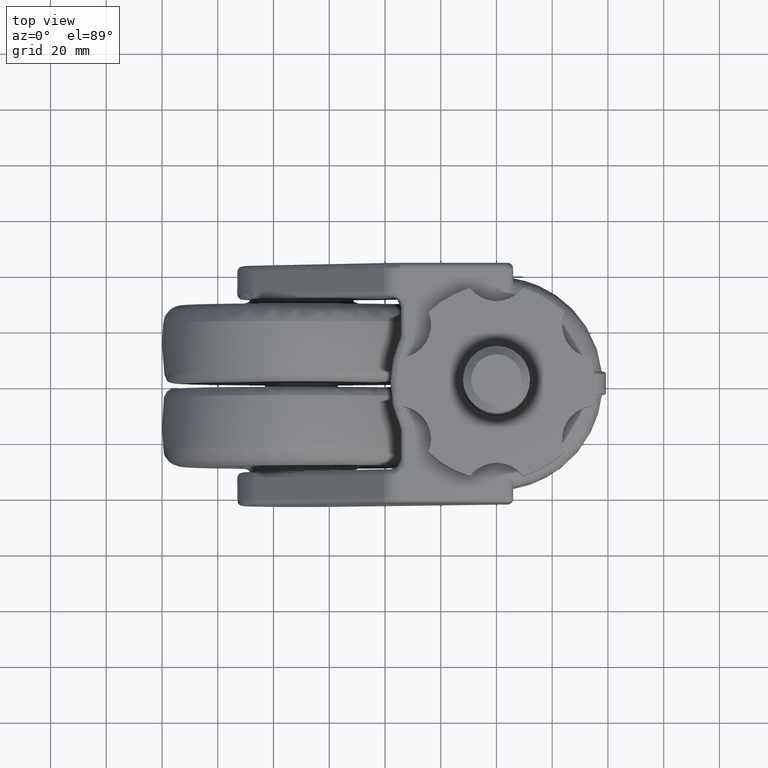
[diagram: clean part render]
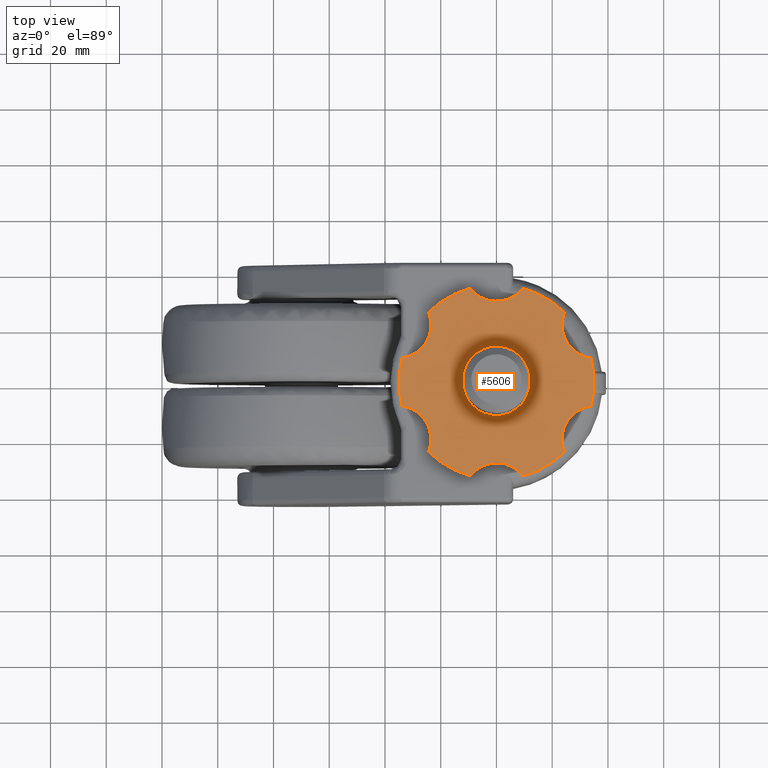
[diagram: same view with one face highlighted and labeled with its STEP entity id]
A machine part, top view. The second image highlights one B-rep face of the part: STEP entity #5606.
In plain terms, the highlighted face is a freeform B-spline surface patch.
Its self-contained STEP definition (entity closure, byte-faithful):
#4047=CARTESIAN_POINT('',(-12.0,0.0,3.0));
#4048=VERTEX_POINT('',#4047);
#4049=CARTESIAN_POINT('',(-0.941509149035661,11.963008004773810,2.999999999999997));
#4050=VERTEX_POINT('',#4049);
#4051=CARTESIAN_POINT('',(-12.0,0.0,3.0));
#4052=CARTESIAN_POINT('',(-12.0,11.092685899337635,3.000000000000000));
#4053=CARTESIAN_POINT('',(-0.941509149035661,11.963008004773807,2.999999999999997));
#4061=(BOUNDED_CURVE()B_SPLINE_CURVE(2,(#4051,#4052,#4053),.UNSPECIFIED.,.F.,.U.)B_SPLINE_CURVE_WITH_KNOTS((3,3),(0.500000000000000,0.736331300624126),.UNSPECIFIED.)CURVE()GEOMETRIC_REPRESENTATION_ITEM()RATIONAL_B_SPLINE_CURVE((1.0,0.723120658615320,0.969723356153783))REPRESENTATION_ITEM(''));
#4062=EDGE_CURVE('',#4048,#4050,#4061,.T.);
#4064=CARTESIAN_POINT('',(0.941509149035660,-11.963008004773810,2.999999999999997));
#4065=VERTEX_POINT('',#4064);
#4066=CARTESIAN_POINT('',(0.941509149035660,-11.963008004773803,2.999999999999997));
#4067=CARTESIAN_POINT('',(0.471481284394952,-12.000000000000007,3.000000000000000));
#4068=CARTESIAN_POINT('',(0.0,-12.0,3.0));
#4069=CARTESIAN_POINT('',(-12.0,-12.0,3.0));
#4070=CARTESIAN_POINT('',(-12.0,0.0,3.0));
#4078=(BOUNDED_CURVE()B_SPLINE_CURVE(2,(#4066,#4067,#4068,#4069,#4070),.UNSPECIFIED.,.F.,.U.)B_SPLINE_CURVE_WITH_KNOTS((3,2,3),(0.236331300624126,0.250000000000000,0.500000000000000),.UNSPECIFIED.)CURVE()GEOMETRIC_REPRESENTATION_ITEM()RATIONAL_B_SPLINE_CURVE((0.969723356153782,0.983986122571227,1.0,0.707106781186548,1.0))REPRESENTATION_ITEM(''));
#4079=EDGE_CURVE('',#4065,#4048,#4078,.T.);
#4115=CARTESIAN_POINT('',(12.0,0.0,3.0));
#4116=VERTEX_POINT('',#4115);
#4117=CARTESIAN_POINT('',(-0.941509149035661,11.963008004773803,2.999999999999997));
#4118=CARTESIAN_POINT('',(-0.471481284394953,11.999999999999995,3.000000000000000));
#4119=CARTESIAN_POINT('',(0.0,12.0,3.0));
#4120=CARTESIAN_POINT('',(12.0,12.0,3.0));
#4121=CARTESIAN_POINT('',(12.0,0.0,3.0));
#4129=(BOUNDED_CURVE()B_SPLINE_CURVE(2,(#4117,#4118,#4119,#4120,#4121),.UNSPECIFIED.,.F.,.U.)B_SPLINE_CURVE_WITH_KNOTS((3,2,3),(0.736331300624126,0.750000000000000,1.0),.UNSPECIFIED.)CURVE()GEOMETRIC_REPRESENTATION_ITEM()RATIONAL_B_SPLINE_CURVE((0.969723356153782,0.983986122571227,1.0,0.707106781186548,1.0))REPRESENTATION_ITEM(''));
#4130=EDGE_CURVE('',#4050,#4116,#4129,.T.);
#4137=CARTESIAN_POINT('',(12.0,0.0,3.0));
#4138=CARTESIAN_POINT('',(12.000000000000002,-11.092685899337598,3.000000000000001));
#4139=CARTESIAN_POINT('',(0.941509149035660,-11.963008004773810,2.999999999999998));
#4147=(BOUNDED_CURVE()B_SPLINE_CURVE(2,(#4137,#4138,#4139),.UNSPECIFIED.,.F.,.U.)B_SPLINE_CURVE_WITH_KNOTS((3,3),(0.0,0.236331300624126),.UNSPECIFIED.)CURVE()GEOMETRIC_REPRESENTATION_ITEM()RATIONAL_B_SPLINE_CURVE((1.0,0.723120658615320,0.969723356153782))REPRESENTATION_ITEM(''));
#4148=EDGE_CURVE('',#4116,#4065,#4147,.T.);
#4935=CARTESIAN_POINT('',(-33.925804934236801,8.604635934431780,3.0));
#4936=VERTEX_POINT('',#4935);
#4937=CARTESIAN_POINT('',(-33.925805495054753,-8.604635730023711,3.0));
#4938=VERTEX_POINT('',#4937);
#4939=CARTESIAN_POINT('',(-33.925804934236787,8.604635934431769,3.0));
#4940=CARTESIAN_POINT('',(-36.108207333125854,0.000000173324442,3.000000000000000));
#4941=CARTESIAN_POINT('',(-33.925805495054753,-8.604635730023711,3.0));
#4949=(BOUNDED_CURVE()B_SPLINE_CURVE(2,(#4939,#4940,#4941),.UNSPECIFIED.,.F.,.U.)CURVE()GEOMETRIC_REPRESENTATION_ITEM()QUASI_UNIFORM_CURVE()RATIONAL_B_SPLINE_CURVE((1.0,0.969308713586864,1.0))REPRESENTATION_ITEM(''));
#4950=EDGE_CURVE('',#4936,#4938,#4949,.T.);
#4996=CARTESIAN_POINT('',(-24.414735776652751,-25.078290949668649,3.0));
#4997=VERTEX_POINT('',#4996);
#4998=CARTESIAN_POINT('',(-24.414735776652751,-25.078290949668649,3.0));
#4999=CARTESIAN_POINT('',(-22.160541410148308,-19.616816971440102,3.000000000000000));
#5000=CARTESIAN_POINT('',(-25.114737232491709,-14.499999865064630,3.0));
#5001=CARTESIAN_POINT('',(-28.068933054835121,-9.383182758689154,3.000000000000000));
#5002=CARTESIAN_POINT('',(-33.925805495054753,-8.604635730023713,3.0));
#5010=(BOUNDED_CURVE()B_SPLINE_CURVE(2,(#4998,#4999,#5000,#5001,#5002),.UNSPECIFIED.,.F.,.U.)B_SPLINE_CURVE_WITH_KNOTS((3,2,3),(0.0,0.500000000000000,1.0),.UNSPECIFIED.)CURVE()GEOMETRIC_REPRESENTATION_ITEM()RATIONAL_B_SPLINE_CURVE((1.0,0.897149960549966,1.0,0.897149960549966,1.0))REPRESENTATION_ITEM(''));
#5011=EDGE_CURVE('',#4997,#4938,#5010,.T.);
#5053=CARTESIAN_POINT('',(-9.511069392596539,-33.682926882337902,3.0));
#5054=VERTEX_POINT('',#5053);
#5055=CARTESIAN_POINT('',(-24.414735776652751,-25.078290949668649,3.0));
#5056=CARTESIAN_POINT('',(-18.054103774965707,-31.270624789537539,3.0));
#5057=CARTESIAN_POINT('',(-9.511069392596539,-33.682926882337902,3.0));
#5065=(BOUNDED_CURVE()B_SPLINE_CURVE(2,(#5055,#5056,#5057),.UNSPECIFIED.,.F.,.U.)CURVE()GEOMETRIC_REPRESENTATION_ITEM()QUASI_UNIFORM_CURVE()RATIONAL_B_SPLINE_CURVE((1.0,0.969308713202774,1.0))REPRESENTATION_ITEM(''));
#5066=EDGE_CURVE('',#4997,#5054,#5065,.T.);
#5106=CARTESIAN_POINT('',(9.511069157583881,-33.682926884100453,3.0));
#5107=VERTEX_POINT('',#5106);
#5108=CARTESIAN_POINT('',(9.511069157583881,-33.682926884100453,3.0));
#5109=CARTESIAN_POINT('',(5.908391493574867,-28.999999965065786,3.000000000000000));
#5110=CARTESIAN_POINT('',(-0.000000070951713,-29.0,3.0));
#5111=CARTESIAN_POINT('',(-5.908391635478290,-29.000000034934217,3.000000000000000));
#5112=CARTESIAN_POINT('',(-9.511069392596534,-33.682926882337910,3.0));
#5120=(BOUNDED_CURVE()B_SPLINE_CURVE(2,(#5108,#5109,#5110,#5111,#5112),.UNSPECIFIED.,.F.,.U.)B_SPLINE_CURVE_WITH_KNOTS((3,2,3),(0.0,0.500000000000000,1.0),.UNSPECIFIED.)CURVE()GEOMETRIC_REPRESENTATION_ITEM()RATIONAL_B_SPLINE_CURVE((1.0,0.897149958988129,1.0,0.897149958988129,1.0))REPRESENTATION_ITEM(''));
#5121=EDGE_CURVE('',#5107,#5054,#5120,.T.);
#5163=CARTESIAN_POINT('',(24.414735102458049,-25.078291152314200,3.0));
#5164=VERTEX_POINT('',#5163);
#5165=CARTESIAN_POINT('',(9.511069157583878,-33.682926884100453,3.0));
#5166=CARTESIAN_POINT('',(18.054103368746318,-31.270624963974704,3.000000000000001));
#5167=CARTESIAN_POINT('',(24.414735102458049,-25.078291152314200,3.0));
#5175=(BOUNDED_CURVE()B_SPLINE_CURVE(2,(#5165,#5166,#5167),.UNSPECIFIED.,.F.,.U.)CURVE()GEOMETRIC_REPRESENTATION_ITEM()QUASI_UNIFORM_CURVE()RATIONAL_B_SPLINE_CURVE((1.0,0.969308714599837,1.0))REPRESENTATION_ITEM(''));
#5176=EDGE_CURVE('',#5107,#5164,#5175,.T.);
#5216=CARTESIAN_POINT('',(33.925804934236801,-8.604635934431721,3.0));
#5217=VERTEX_POINT('',#5216);
#5218=CARTESIAN_POINT('',(33.925804934236801,-8.604635934431721,3.0));
#5219=CARTESIAN_POINT('',(28.068932211495977,-9.383182535004474,3.000000000000000));
#5220=CARTESIAN_POINT('',(25.114736256691110,-14.499999823149860,3.0));
#5221=CARTESIAN_POINT('',(22.160540301886261,-19.616817111295237,3.000000000000000));
#5222=CARTESIAN_POINT('',(24.414735102458060,-25.078291152314200,3.0));
#5230=(BOUNDED_CURVE()B_SPLINE_CURVE(2,(#5218,#5219,#5220,#5221,#5222),.UNSPECIFIED.,.F.,.U.)B_SPLINE_CURVE_WITH_KNOTS((3,2,3),(0.0,0.500000000000000,1.0),.UNSPECIFIED.)CURVE()GEOMETRIC_REPRESENTATION_ITEM()RATIONAL_B_SPLINE_CURVE((1.0,0.897149953923727,1.0,0.897149953923727,1.0))REPRESENTATION_ITEM(''));
#5231=EDGE_CURVE('',#5217,#5164,#5230,.T.);
#5273=CARTESIAN_POINT('',(33.925804495054663,8.604635730023722,3.0));
#5274=VERTEX_POINT('',#5273);
#5275=CARTESIAN_POINT('',(33.925804934236801,-8.604635934431729,3.0));
#5276=CARTESIAN_POINT('',(36.108207365290191,-0.000000046508894,3.000000000000000));
#5277=CARTESIAN_POINT('',(33.925804495054663,8.604635730023722,3.0));
#5285=(BOUNDED_CURVE()B_SPLINE_CURVE(2,(#5275,#5276,#5277),.UNSPECIFIED.,.F.,.U.)CURVE()GEOMETRIC_REPRESENTATION_ITEM()QUASI_UNIFORM_CURVE()RATIONAL_B_SPLINE_CURVE((1.0,0.969308712723427,1.0))REPRESENTATION_ITEM(''));
#5286=EDGE_CURVE('',#5217,#5274,#5285,.T.);
#5326=CARTESIAN_POINT('',(24.414735776652751,25.078290949668649,3.0));
#5327=VERTEX_POINT('',#5326);
#5328=CARTESIAN_POINT('',(24.414735776652751,25.078290949668649,3.0));
#5329=CARTESIAN_POINT('',(22.160540336856496,19.616817286234628,3.000000000000000));
#5330=CARTESIAN_POINT('',(25.114736137110540,14.500000030269490,3.0));
#5331=CARTESIAN_POINT('',(28.068931937364578,9.383182774304354,3.000000000000000));
#5332=CARTESIAN_POINT('',(33.925804495054649,8.604635730023711,3.0));
#5340=(BOUNDED_CURVE()B_SPLINE_CURVE(2,(#5328,#5329,#5330,#5331,#5332),.UNSPECIFIED.,.F.,.U.)B_SPLINE_CURVE_WITH_KNOTS((3,2,3),(0.0,0.500000000000000,1.0),.UNSPECIFIED.)CURVE()GEOMETRIC_REPRESENTATION_ITEM()RATIONAL_B_SPLINE_CURVE((1.0,0.897149957038940,1.0,0.897149957038940,1.0))REPRESENTATION_ITEM(''));
#5341=EDGE_CURVE('',#5327,#5274,#5340,.T.);
#5383=CARTESIAN_POINT('',(9.511069392596530,33.682926882337902,3.0));
#5384=VERTEX_POINT('',#5383);
#5385=CARTESIAN_POINT('',(24.414735776652751,25.078290949668649,3.0));
#5386=CARTESIAN_POINT('',(18.054103774965704,31.270624789537546,3.000000000000000));
#5387=CARTESIAN_POINT('',(9.511069392596530,33.682926882337902,3.0));
#5395=(BOUNDED_CURVE()B_SPLINE_CURVE(2,(#5385,#5386,#5387),.UNSPECIFIED.,.F.,.U.)CURVE()GEOMETRIC_REPRESENTATION_ITEM()QUASI_UNIFORM_CURVE()RATIONAL_B_SPLINE_CURVE((1.0,0.969308713202774,1.0))REPRESENTATION_ITEM(''));
#5396=EDGE_CURVE('',#5327,#5384,#5395,.T.);
#5436=CARTESIAN_POINT('',(-9.511069157583881,33.682926884100453,3.0));
#5437=VERTEX_POINT('',#5436);
#5438=CARTESIAN_POINT('',(-9.511069157583881,33.682926884100453,3.0));
#5439=CARTESIAN_POINT('',(-5.908391493574871,28.999999965065797,3.000000000000000));
#5440=CARTESIAN_POINT('',(0.000000070951707,29.0,3.0));
#5441=CARTESIAN_POINT('',(5.908391635478282,29.000000034934210,3.000000000000000));
#5442=CARTESIAN_POINT('',(9.511069392596527,33.682926882337902,3.0));
#5450=(BOUNDED_CURVE()B_SPLINE_CURVE(2,(#5438,#5439,#5440,#5441,#5442),.UNSPECIFIED.,.F.,.U.)B_SPLINE_CURVE_WITH_KNOTS((3,2,3),(0.0,0.500000000000000,1.0),.UNSPECIFIED.)CURVE()GEOMETRIC_REPRESENTATION_ITEM()RATIONAL_B_SPLINE_CURVE((1.0,0.897149958988130,1.0,0.897149958988130,1.0))REPRESENTATION_ITEM(''));
#5451=EDGE_CURVE('',#5437,#5384,#5450,.T.);
#5493=CARTESIAN_POINT('',(-24.414735776652702,25.078290949668698,3.0));
#5494=VERTEX_POINT('',#5493);
#5495=CARTESIAN_POINT('',(-9.511069157583881,33.682926884100453,3.0));
#5496=CARTESIAN_POINT('',(-18.054103688543037,31.270624873673498,3.000000000000000));
#5497=CARTESIAN_POINT('',(-24.414735776652702,25.078290949668698,3.0));
#5505=(BOUNDED_CURVE()B_SPLINE_CURVE(2,(#5495,#5496,#5497),.UNSPECIFIED.,.F.,.U.)CURVE()GEOMETRIC_REPRESENTATION_ITEM()QUASI_UNIFORM_CURVE()RATIONAL_B_SPLINE_CURVE((1.0,0.969308712406765,1.0))REPRESENTATION_ITEM(''));
#5506=EDGE_CURVE('',#5437,#5494,#5505,.T.);
#5546=CARTESIAN_POINT('',(-33.925804934236801,8.604635934431780,3.0));
#5547=CARTESIAN_POINT('',(-28.068932694332414,9.383183096116445,3.0));
#5548=CARTESIAN_POINT('',(-25.114737086776060,14.500000117451551,3.0));
#5549=CARTESIAN_POINT('',(-22.160541479219702,19.616817138786647,3.0));
#5550=CARTESIAN_POINT('',(-24.414735776652702,25.078290949668698,3.0));
#5558=(BOUNDED_CURVE()B_SPLINE_CURVE(2,(#5546,#5547,#5548,#5549,#5550),.UNSPECIFIED.,.F.,.U.)B_SPLINE_CURVE_WITH_KNOTS((3,2,3),(0.0,0.500000000000000,1.0),.UNSPECIFIED.)CURVE()GEOMETRIC_REPRESENTATION_ITEM()RATIONAL_B_SPLINE_CURVE((1.0,0.897149965913833,1.0,0.897149965913833,1.0))REPRESENTATION_ITEM(''));
#5559=EDGE_CURVE('',#4936,#5494,#5558,.T.);
#5581=CARTESIAN_POINT('',(-38.496499985956241,-37.047850516871527,3.0));
#5582=CARTESIAN_POINT('',(38.496501624951968,-37.047850516871527,3.0));
#5583=CARTESIAN_POINT('',(-38.496499985956241,37.047852926062212,3.0));
#5584=CARTESIAN_POINT('',(38.496501624951968,37.047852926062212,3.0));
#5585=B_SPLINE_SURFACE_WITH_KNOTS('',1,1,((#5581,#5583),(#5582,#5584)),.UNSPECIFIED.,.F.,.F.,.U.,(2,2),(2,2),(0.0,76.993001610908209),(0.0,74.095703442933740),.UNSPECIFIED.);
#5586=ORIENTED_EDGE('',*,*,#5559,.F.);
#5587=ORIENTED_EDGE('',*,*,#4950,.T.);
#5588=ORIENTED_EDGE('',*,*,#5011,.F.);
#5589=ORIENTED_EDGE('',*,*,#5066,.T.);
#5590=ORIENTED_EDGE('',*,*,#5121,.F.);
#5591=ORIENTED_EDGE('',*,*,#5176,.T.);
#5592=ORIENTED_EDGE('',*,*,#5231,.F.);
#5593=ORIENTED_EDGE('',*,*,#5286,.T.);
#5594=ORIENTED_EDGE('',*,*,#5341,.F.);
#5595=ORIENTED_EDGE('',*,*,#5396,.T.);
#5596=ORIENTED_EDGE('',*,*,#5451,.F.);
#5597=ORIENTED_EDGE('',*,*,#5506,.T.);
#5598=EDGE_LOOP('',(#5586,#5587,#5588,#5589,#5590,#5591,#5592,#5593,#5594,#5595,#5596,#5597));
#5599=FACE_OUTER_BOUND('',#5598,.T.);
#5600=ORIENTED_EDGE('',*,*,#4148,.T.);
#5601=ORIENTED_EDGE('',*,*,#4079,.T.);
#5602=ORIENTED_EDGE('',*,*,#4062,.T.);
#5603=ORIENTED_EDGE('',*,*,#4130,.T.);
#5604=EDGE_LOOP('',(#5600,#5601,#5602,#5603));
#5605=FACE_BOUND('',#5604,.T.);
#5606=ADVANCED_FACE('',(#5599,#5605),#5585,.T.);